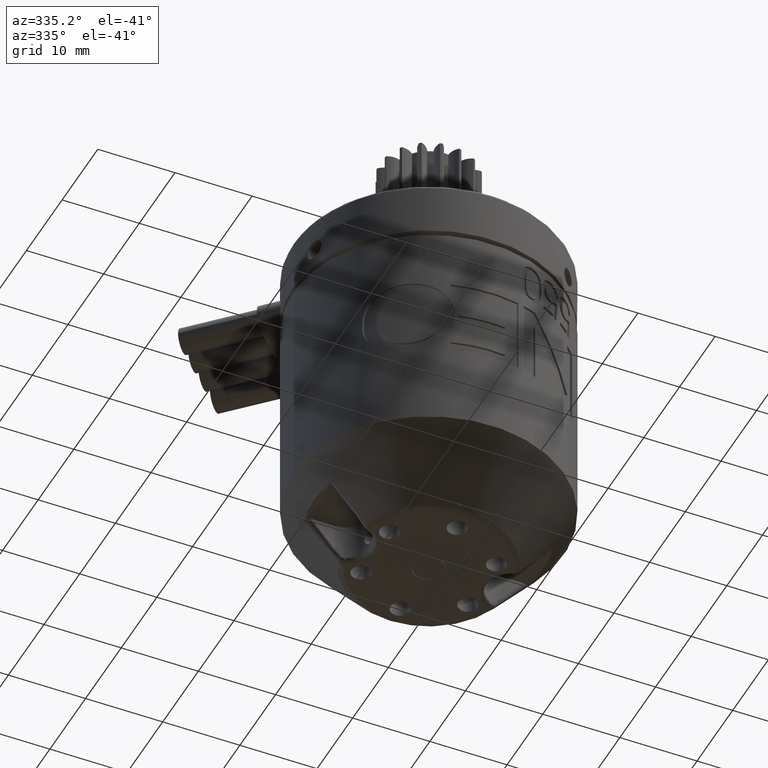
[diagram: clean part render]
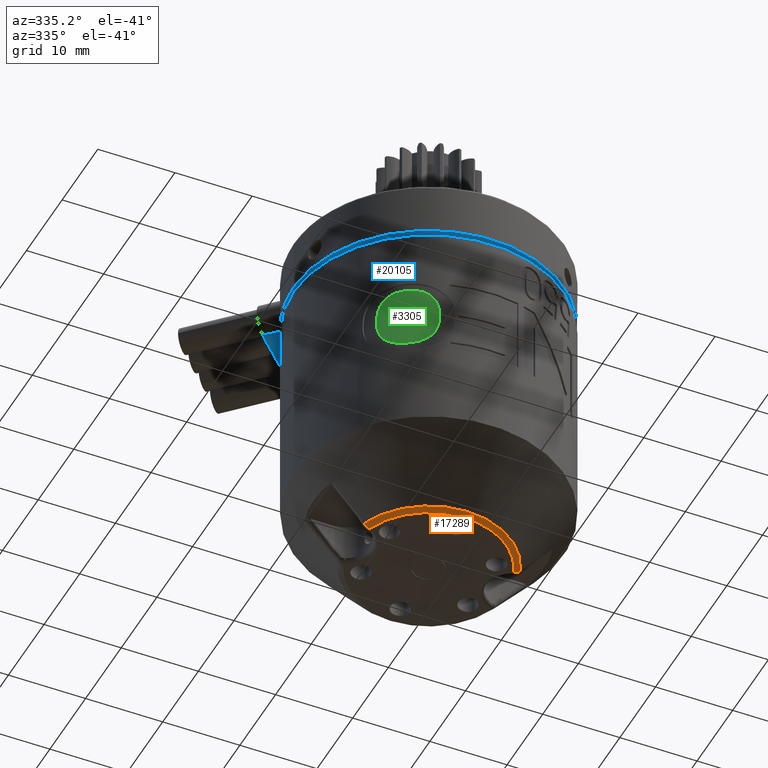
[diagram: same view with three faces highlighted in distinct colors, each labeled with its STEP entity id]
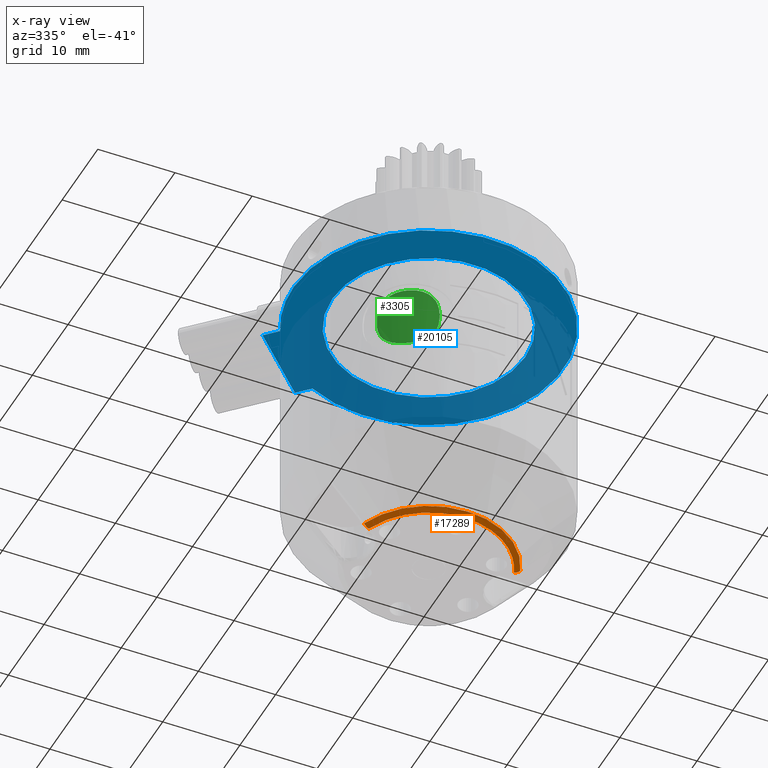
[diagram: x-ray of the same camera — body ghosted, the three highlighted faces saturated]
A machine part, auxiliary view with three faces highlighted in distinct colors.
The next image is the same camera in x-ray (body ghosted, the three faces saturated) — at least one of them is partly hidden behind the body in this view.
Their STEP definitions:

[orange] entity #17289 — the highlighted face is a freeform B-spline surface patch.
#22 = CARTESIAN_POINT ( 'NONE',  ( 11.50366383426905337, -11.59495270973779846, -44.37029868889339213 ) ) ;
#522 = CARTESIAN_POINT ( 'NONE',  ( 7.439127977017144566, -0.4813684167310818274, -44.22007231676117556 ) ) ;
#628 =( BOUNDED_CURVE ( )  B_SPLINE_CURVE ( 3, ( #13154, #19757, #4821, #11505 ),
 .UNSPECIFIED., .F., .F. ) 
 B_SPLINE_CURVE_WITH_KNOTS ( ( 4, 4 ),
 ( 0.0000000000000000000, 1.000000000000000000 ),
 .UNSPECIFIED. ) 
 CURVE ( )  GEOMETRIC_REPRESENTATION_ITEM ( )  RATIONAL_B_SPLINE_CURVE ( ( 1.000000000000000000, 0.5658733974177199144, 0.5658733974177199144, 1.000000000000000000 ) ) 
 REPRESENTATION_ITEM ( '' )  );
#637 = CARTESIAN_POINT ( 'NONE',  ( 7.974050846998459008, -0.2963316515497781967, -44.50000000000000000 ) ) ;
#866 = CARTESIAN_POINT ( 'NONE',  ( 26.96200152701082331, -0.2720763021500833823, -44.50000000000000711 ) ) ;
#984 = CARTESIAN_POINT ( 'NONE',  ( 27.49308213912375720, -0.4589754210635687559, -44.27917320272349855 ) ) ;
#1662 = CARTESIAN_POINT ( 'NONE',  ( 7.760381635693487823, -0.1981302465118955081, -44.49999999999999289 ) ) ;
#2228 = ORIENTED_EDGE ( 'NONE', *, *, #13356, .F. ) ;
#2244 = CARTESIAN_POINT ( 'NONE',  ( 7.698183323178923843, -0.3943180650460911818, -44.40316365045107005 ) ) ;
#2578 = CARTESIAN_POINT ( 'NONE',  ( 27.29819330544807698, -0.3930633364075385994, -44.40497581551484529 ) ) ;
#2711 = EDGE_CURVE ( 'NONE', #19690, #5228, #16773, .T. ) ;
#3272 = CARTESIAN_POINT ( 'NONE',  ( 27.23961836430651218, -0.1981302465118806033, -44.50000000000000000 ) ) ;
#3796 = CARTESIAN_POINT ( 'NONE',  ( 17.49999999999999645, 3.249999999999997780, -44.13570725286108853 ) ) ;
#3875 = CARTESIAN_POINT ( 'NONE',  ( 7.685372907162890677, -0.3987404316812626082, -44.39662385045358661 ) ) ;
#4151 = EDGE_LOOP ( 'NONE', ( #21007, #15312, #2228, #4937 ) ) ;
#4210 = CARTESIAN_POINT ( 'NONE',  ( 27.28446455535385340, -0.3882994163650859143, -44.41168708397476905 ) ) ;
#4821 = CARTESIAN_POINT ( 'NONE',  ( 23.03613023969431239, -10.62474372564457425, -44.50000000000000000 ) ) ;
#4889 = CARTESIAN_POINT ( 'NONE',  ( 23.16915934238507901, -10.78497069137644360, -44.50000000000000000 ) ) ;
#4937 = ORIENTED_EDGE ( 'NONE', *, *, #2711, .T. ) ;
#4998 = CARTESIAN_POINT ( 'NONE',  ( 11.39444630832858607, -11.86533931963580457, -44.13570725286108143 ) ) ;
#5228 = VERTEX_POINT ( 'NONE', #20024 ) ;
#5501 = CARTESIAN_POINT ( 'NONE',  ( 7.652993067762933421, -0.4098307827914228207, -44.37897931449465716 ) ) ;
#5846 = CARTESIAN_POINT ( 'NONE',  ( 27.21461369076353876, -0.3638111369176059151, -44.44172157127045608 ) ) ;
#6569 = B_SPLINE_CURVE_WITH_KNOTS ( 'NONE', 3,
 ( #15779, #866, #7481, #14171, #20776, #5846, #12536, #19163, #4210, #10895, #17512, #2578, #9253, #15889, #984, #7597, #14276 ),
 .UNSPECIFIED., .F., .F.,
 ( 4, 2, 2, 1, 1, 1, 2, 2, 2, 4 ),
 ( 0.0000000000000000000, 0.2500000000000318634, 0.3750000000000477951, 0.4375000000000557332, 0.4687500000000638933, 0.4843750000000724421, 0.4921875000000767164, 0.5000000000000809353, 0.7500000000000405231, 1.000000000000000000 ),
 .UNSPECIFIED. ) ;
#6625 = CARTESIAN_POINT ( 'NONE',  ( 7.501303738556660328, -0.2898519444168197179, -44.37029868889339923 ) ) ;
#7139 = CARTESIAN_POINT ( 'NONE',  ( 7.506699040876324780, -0.4590477529678028690, -44.27897558932735222 ) ) ;
#7247 = CARTESIAN_POINT ( 'NONE',  ( 8.101753518151513234, -0.2478939987034102232, -44.50000000000027711 ) ) ;
#7458 =( BOUNDED_SURFACE ( )  B_SPLINE_SURFACE ( 3, 3, ( 
 ( #19820, #4889, #11575, #18183 ),
 ( #3272, #9922, #16553, #1662 ),
 ( #8289, #14937, #22, #6625 ),
 ( #13320, #19922, #4998, #11683 ) ),
 .UNSPECIFIED., .F., .F., .T. ) 
 B_SPLINE_SURFACE_WITH_KNOTS ( ( 4, 4 ),
 ( 4, 4 ),
 ( 0.0000000000000000000, 1.000000000000000000 ),
 ( 0.0000000000000000000, 1.000000000000000000 ),
 .UNSPECIFIED. ) 
 GEOMETRIC_REPRESENTATION_ITEM ( )  RATIONAL_B_SPLINE_SURFACE ( (
 ( 1.000000000000000000, 0.5558225325761347868, 0.5558225325761347868, 1.000000000000000000),
 ( 0.9362350671472263741, 0.5203805461083589323, 0.5203805461083589323, 0.9362350671472263741),
 ( 0.9362350671472263741, 0.5203805461083589323, 0.5203805461083589323, 0.9362350671472263741),
 ( 1.000000000000000000, 0.5558225325761347868, 0.5558225325761347868, 1.000000000000000000) ) ) 
 REPRESENTATION_ITEM ( '' )  SURFACE ( )  );
#7481 = CARTESIAN_POINT ( 'NONE',  ( 27.02844059091529161, -0.2967436950145157515, -44.49300404410204379 ) ) ;
#7597 = CARTESIAN_POINT ( 'NONE',  ( 27.56077357169575492, -0.4813370377126190425, -44.22019765563894111 ) ) ;
#7700 = CARTESIAN_POINT ( 'NONE',  ( 26.89824648184838196, -0.2478939987033226267, -44.50000000000000000 ) ) ;
#8289 = CARTESIAN_POINT ( 'NONE',  ( 27.49869626144333523, -0.2898519444168033976, -44.37029868889340634 ) ) ;
#8900 = CARTESIAN_POINT ( 'NONE',  ( 7.698097942946535710, -0.3943478934966146987, -44.40312321559697040 ) ) ;
#9253 = CARTESIAN_POINT ( 'NONE',  ( 27.33135880608195478, -0.4045516650603601105, -44.38842823121510150 ) ) ;
#9922 = CARTESIAN_POINT ( 'NONE',  ( 23.34096409284045492, -11.21030264831274259, -44.49999999999999289 ) ) ;
#10457 = DIRECTION ( 'NONE',  ( 4.139648849035764628E-31, -8.326672684688676518E-17, 1.000000000000000000 ) ) ;
#10545 = CARTESIAN_POINT ( 'NONE',  ( 7.692985102591828550, -0.3961150346486706497, -44.40053459245267931 ) ) ;
#10895 = CARTESIAN_POINT ( 'NONE',  ( 27.29078262266515154, -0.3904933310335908514, -44.40862376350272456 ) ) ;
#11505 = CARTESIAN_POINT ( 'NONE',  ( 26.89824648184838196, -0.2478939987033226267, -44.50000000000000000 ) ) ;
#11575 = CARTESIAN_POINT ( 'NONE',  ( 11.83084065761493520, -10.78497069137645781, -44.49999999999999289 ) ) ;
#11683 = CARTESIAN_POINT ( 'NONE',  ( 7.319187052946866778, -0.3543269606399376825, -44.13570725286108853 ) ) ;
#12195 = CARTESIAN_POINT ( 'NONE',  ( 7.663653307169619566, -0.4061916002199402742, -44.38496571207479491 ) ) ;
#12452 = VERTEX_POINT ( 'NONE', #7700 ) ;
#12536 = CARTESIAN_POINT ( 'NONE',  ( 27.24008801811550384, -0.3728033219356151617, -44.43177429566423342 ) ) ;
#13154 = CARTESIAN_POINT ( 'NONE',  ( 8.101753518151513234, -0.2478939987034102232, -44.50000000000027711 ) ) ;
#13320 = CARTESIAN_POINT ( 'NONE',  ( 27.68081294705313056, -0.3543269606399199190, -44.13570725286109564 ) ) ;
#13356 = EDGE_CURVE ( 'NONE', #19690, #19157, #16043, .T. ) ;
#13832 = CARTESIAN_POINT ( 'NONE',  ( 7.592477743488103670, -0.4303417746831906809, -44.34186736203587031 ) ) ;
#14055 = CARTESIAN_POINT ( 'NONE',  ( 7.372860835699917459, -0.5024895001824745133, -44.13570725286110275 ) ) ;
#14171 = CARTESIAN_POINT ( 'NONE',  ( 27.12966103388019334, -0.3335056185317223365, -44.46977657749813062 ) ) ;
#14210 = EDGE_CURVE ( 'NONE', #5228, #12452, #628, .T. ) ;
#14276 = CARTESIAN_POINT ( 'NONE',  ( 27.62713916430007544, -0.5024895001824692953, -44.13570725286110275 ) ) ;
#14937 = CARTESIAN_POINT ( 'NONE',  ( 23.49633616573095907, -11.59495270973777892, -44.37029868889339923 ) ) ;
#15312 = ORIENTED_EDGE ( 'NONE', *, *, #19798, .T. ) ;
#15443 = CARTESIAN_POINT ( 'NONE',  ( 7.372860835699917459, -0.5024895001824745133, -44.13570725286110275 ) ) ;
#15554 = CARTESIAN_POINT ( 'NONE',  ( 7.834936433463836281, -0.3469553813153161137, -44.47152010157733315 ) ) ;
#15779 = CARTESIAN_POINT ( 'NONE',  ( 26.89824648184838196, -0.2478939987033226267, -44.50000000000000000 ) ) ;
#15889 = CARTESIAN_POINT ( 'NONE',  ( 27.37849636320713742, -0.4206261264223687402, -44.36311164772408944 ) ) ;
#16043 = CIRCLE ( 'NONE', #20887, 10.80000579176141784 ) ;
#16341 = FACE_OUTER_BOUND ( 'NONE', #4151, .T. ) ;
#16553 = CARTESIAN_POINT ( 'NONE',  ( 11.65903590715956817, -11.21030264831275858, -44.49999999999998579 ) ) ;
#16773 = B_SPLINE_CURVE_WITH_KNOTS ( 'NONE', 3,
 ( #15443, #522, #7139, #13832, #20436, #5501, #12195, #18810, #3875, #10545, #17171, #2244, #8900, #15554, #637, #7247 ),
 .UNSPECIFIED., .F., .F.,
 ( 4, 2, 2, 2, 1, 1, 2, 2, 4 ),
 ( 0.0000000000000000000, 0.2499999999999793499, 0.3749999999999757416, 0.4374999999999722999, 0.4687499999999790168, 0.4843749999999824030, 0.4921874999999841793, 0.4999999999999859002, 1.000000000000000000 ),
 .UNSPECIFIED. ) ;
#17092 = DIRECTION ( 'NONE',  ( 1.000000000000000000, 2.409336869013683947E-16, 0.0000000000000000000 ) ) ;
#17171 = CARTESIAN_POINT ( 'NONE',  ( 7.696120999959890518, -0.3950312903706837964, -44.40212344632148245 ) ) ;
#17289 = ADVANCED_FACE ( 'NONE', ( #16341 ), #7458, .T. ) ;
#17512 = CARTESIAN_POINT ( 'NONE',  ( 27.29499229233983826, -0.3919539257173494384, -44.40656299581740996 ) ) ;
#18183 = CARTESIAN_POINT ( 'NONE',  ( 8.046860490213626704, -0.09670775064931497189, -44.49999999999999289 ) ) ;
#18810 = CARTESIAN_POINT ( 'NONE',  ( 7.678348599684596820, -0.4011540568754613512, -44.39291050267330974 ) ) ;
#19157 = VERTEX_POINT ( 'NONE', #21396 ) ;
#19163 = CARTESIAN_POINT ( 'NONE',  ( 27.26969910335320080, -0.3831597553009538637, -44.41864051510026457 ) ) ;
#19690 = VERTEX_POINT ( 'NONE', #14055 ) ;
#19757 = CARTESIAN_POINT ( 'NONE',  ( 11.96386976030570182, -10.62474372564458136, -44.50000000000000000 ) ) ;
#19798 = EDGE_CURVE ( 'NONE', #12452, #19157, #6569, .T. ) ;
#19820 = CARTESIAN_POINT ( 'NONE',  ( 26.95313950978637152, -0.09670775064930084430, -44.50000000000000000 ) ) ;
#19922 = CARTESIAN_POINT ( 'NONE',  ( 23.60555369167142814, -11.86533931963578681, -44.13570725286108853 ) ) ;
#20024 = CARTESIAN_POINT ( 'NONE',  ( 8.101753518151513234, -0.2478939987034102232, -44.50000000000027711 ) ) ;
#20436 = CARTESIAN_POINT ( 'NONE',  ( 7.618615616229067022, -0.4215170458916638330, -44.35862362206526655 ) ) ;
#20776 = CARTESIAN_POINT ( 'NONE',  ( 27.16365144977147139, -0.3457159324306005588, -44.45991588946973394 ) ) ;
#20887 = AXIS2_PLACEMENT_3D ( 'NONE', #3796, #10457, #17092 ) ;
#21007 = ORIENTED_EDGE ( 'NONE', *, *, #14210, .T. ) ;
#21396 = CARTESIAN_POINT ( 'NONE',  ( 27.62713916430007544, -0.5024895001824692953, -44.13570725286110275 ) ) ;

[blue] entity #20105 — the highlighted planar face has unit normal (-0, 0, -1).
#194 = AXIS2_PLACEMENT_3D ( 'NONE', #14608, #21219, #6301 ) ;
#894 = CARTESIAN_POINT ( 'NONE',  ( 0.3092524724154048776, 12.66257293453257127, -6.999999999999995559 ) ) ;
#1433 = ORIENTED_EDGE ( 'NONE', *, *, #6004, .T. ) ;
#1487 = EDGE_LOOP ( 'NONE', ( #8454, #1433, #19499, #6812 ) ) ;
#1736 = DIRECTION ( 'NONE',  ( -1.000000000000000000, -2.289834988289385365E-16, -4.732285006208633540E-33 ) ) ;
#2352 = VECTOR ( 'NONE', #5709, 1000.000000000000000 ) ;
#3084 = CARTESIAN_POINT ( 'NONE',  ( 1.863572579003262897, 11.10825282794470859, -6.999999999999995559 ) ) ;
#3451 = EDGE_CURVE ( 'NONE', #11860, #4805, #12776, .T. ) ;
#4805 = VERTEX_POINT ( 'NONE', #18336 ) ;
#5068 = VERTEX_POINT ( 'NONE', #11752 ) ;
#5347 = DIRECTION ( 'NONE',  ( -4.139648849035764628E-31, 8.326672684688676518E-17, -1.000000000000000000 ) ) ;
#5645 = AXIS2_PLACEMENT_3D ( 'NONE', #10012, #16640, #1736 ) ;
#5709 = DIRECTION ( 'NONE',  ( 0.7071067811865474617, 0.7071067811865475727, 2.178940998026311253E-32 ) ) ;
#6004 = EDGE_CURVE ( 'NONE', #15269, #11860, #20945, .T. ) ;
#6015 = CARTESIAN_POINT ( 'NONE',  ( 8.087427065467426957, 20.44074752758459468, -6.999999999999995559 ) ) ;
#6301 = DIRECTION ( 'NONE',  ( -1.000000000000000000, -2.230358754827323618E-16, 0.0000000000000000000 ) ) ;
#6497 = FACE_OUTER_BOUND ( 'NONE', #1487, .T. ) ;
#6812 = ORIENTED_EDGE ( 'NONE', *, *, #12858, .T. ) ;
#8454 = ORIENTED_EDGE ( 'NONE', *, *, #20235, .T. ) ;
#9736 = DIRECTION ( 'NONE',  ( -0.7071067811865464625, 0.7071067811865486830, -4.357881996052586789E-33 ) ) ;
#10012 = CARTESIAN_POINT ( 'NONE',  ( 0.0000000000000000000, 3.249999999999990230, -6.999999999999995559 ) ) ;
#10637 = EDGE_CURVE ( 'NONE', #5068, #5068, #17106, .T. ) ;
#11103 = CARTESIAN_POINT ( 'NONE',  ( 8.087427066504071504, 20.44074752862123745, -6.999999999511317128 ) ) ;
#11174 = AXIS2_PLACEMENT_3D ( 'NONE', #20280, #5347, #12034 ) ;
#11752 = CARTESIAN_POINT ( 'NONE',  ( 5.000000000000004441, 3.249999999999991562, -6.999999999999988454 ) ) ;
#11860 = VERTEX_POINT ( 'NONE', #12751 ) ;
#12034 = DIRECTION ( 'NONE',  ( -1.000000000000000000, -2.428612866367531411E-16, 0.0000000000000000000 ) ) ;
#12713 = DIRECTION ( 'NONE',  ( 0.7071067821297479794, -0.7071067802433471661, 4.357882025117224772E-33 ) ) ;
#12751 = CARTESIAN_POINT ( 'NONE',  ( 9.641747174814955912, 18.88642742238364036, -6.999999999511317128 ) ) ;
#12776 = CIRCLE ( 'NONE', #194, 17.49999999999999645 ) ;
#12858 = EDGE_CURVE ( 'NONE', #4805, #18225, #18007, .T. ) ;
#13199 = PLANE ( 'NONE',  #5645 ) ;
#14030 = LINE ( 'NONE', #20635, #2352 ) ;
#14608 = CARTESIAN_POINT ( 'NONE',  ( 17.49999999999999645, 3.249999999999994671, -6.999999999999995559 ) ) ;
#15269 = VERTEX_POINT ( 'NONE', #11103 ) ;
#16640 = DIRECTION ( 'NONE',  ( -1.433442144322500688E-32, 8.326672684688676518E-17, -1.000000000000000000 ) ) ;
#17106 = CIRCLE ( 'NONE', #11174, 12.49999999999999289 ) ;
#17578 = EDGE_LOOP ( 'NONE', ( #19791 ) ) ;
#18007 = LINE ( 'NONE', #3084, #19513 ) ;
#18225 = VERTEX_POINT ( 'NONE', #894 ) ;
#18336 = CARTESIAN_POINT ( 'NONE',  ( 1.863572579003259344, 11.10825282794471214, -6.999999999999995559 ) ) ;
#19499 = ORIENTED_EDGE ( 'NONE', *, *, #3451, .T. ) ;
#19513 = VECTOR ( 'NONE', #9736, 999.9999999999998863 ) ;
#19791 = ORIENTED_EDGE ( 'NONE', *, *, #10637, .F. ) ;
#20105 = ADVANCED_FACE ( 'NONE', ( #21431, #6497 ), #13199, .T. ) ;
#20235 = EDGE_CURVE ( 'NONE', #18225, #15269, #14030, .T. ) ;
#20280 = CARTESIAN_POINT ( 'NONE',  ( 17.49999999999999645, 3.249999999999994671, -6.999999999999988454 ) ) ;
#20296 = VECTOR ( 'NONE', #12713, 1000.000000000000114 ) ;
#20635 = CARTESIAN_POINT ( 'NONE',  ( 0.3092524724154048776, 12.66257293453257127, -6.999999999999995559 ) ) ;
#20945 = LINE ( 'NONE', #6015, #20296 ) ;
#21219 = DIRECTION ( 'NONE',  ( -4.139648849035764628E-31, 8.326672684688676518E-17, -1.000000000000000000 ) ) ;
#21431 = FACE_BOUND ( 'NONE', #17578, .T. ) ;

[green] entity #3305 — the highlighted cylindrical surface (partial cylindrical patch) has radius 17.5 mm, axis along (-0, 0, -1).
#70 = CARTESIAN_POINT ( 'NONE',  ( 5.533648454040138276, -9.520007752569677351, -23.04068165805056978 ) ) ;
#700 = CARTESIAN_POINT ( 'NONE',  ( 11.30750749180823966, -13.11774797808820558, -20.98083291403303363 ) ) ;
#815 = CARTESIAN_POINT ( 'NONE',  ( 8.822647812327637951, -11.94914742998792256, -24.31406775299358358 ) ) ;
#977 = VERTEX_POINT ( 'NONE', #11449 ) ;
#1029 = CARTESIAN_POINT ( 'NONE',  ( 10.54985635765608620, -12.81167819823166276, -17.39643327027750175 ) ) ;
#1297 = CARTESIAN_POINT ( 'NONE',  ( 6.070400491761001938, -10.00368207324945757, -16.84240964047531364 ) ) ;
#1365 = B_SPLINE_CURVE_WITH_KNOTS ( 'NONE', 3,
 ( #5886, #12580, #19214, #4257, #10938, #17551, #2623, #9294, #15930, #1029, #7640, #14317, #20927, #5996, #12691, #19309, #4359, #11060 ),
 .UNSPECIFIED., .F., .F.,
 ( 4, 2, 2, 2, 2, 2, 2, 2, 4 ),
 ( 0.0000000000000000000, 0.0007589268900731786175, 0.001517853780146357235, 0.002276780670219536069, 0.003035707560292714470, 0.003794634450365892871, 0.004553561340439072139, 0.005312488230512250539, 0.006071415120585428940 ),
 .UNSPECIFIED. ) ;
#1701 = CARTESIAN_POINT ( 'NONE',  ( 6.064642647946742571, -9.998750228470218104, -23.74930663019873478 ) ) ;
#2265 = EDGE_CURVE ( 'NONE', #977, #4662, #1365, .T. ) ;
#2416 = CARTESIAN_POINT ( 'NONE',  ( 9.650323487306737391, -12.39217149925121753, -24.00095499285716727 ) ) ;
#2623 = CARTESIAN_POINT ( 'NONE',  ( 9.657766510941343086, -12.39592841730424766, -16.62270847107738803 ) ) ;
#2880 = CARTESIAN_POINT ( 'NONE',  ( 5.545574894488098039, -9.531159563480612107, -17.53660513488476980 ) ) ;
#3305 = ADVANCED_FACE ( 'NONE', ( #9372 ), #16009, .T. ) ;
#3318 = CARTESIAN_POINT ( 'NONE',  ( 6.954898642737441072, -10.71809668666475091, -24.26117965974541590 ) ) ;
#3425 = CARTESIAN_POINT ( 'NONE',  ( 5.079339528485517619, -9.077946631265426447, -21.14752040184337645 ) ) ;
#3514 = EDGE_LOOP ( 'NONE', ( #18657, #14185, #5481, #11959, #20470, #10466 ) ) ;
#4049 = CARTESIAN_POINT ( 'NONE',  ( 10.53416953835020031, -12.80487098690146119, -23.25454950367037199 ) ) ;
#4095 = EDGE_CURVE ( 'NONE', #7201, #17581, #16240, .T. ) ;
#4204 = VECTOR ( 'NONE', #17927, 1000.000000000000000 ) ;
#4216 = EDGE_CURVE ( 'NONE', #15127, #7201, #19107, .T. ) ;
#4257 = CARTESIAN_POINT ( 'NONE',  ( 8.819782510786781771, -11.94755414633247170, -16.29898545508072516 ) ) ;
#4359 = CARTESIAN_POINT ( 'NONE',  ( 11.31127905561682034, -13.11917200634141700, -19.72960257223142833 ) ) ;
#4508 = CARTESIAN_POINT ( 'NONE',  ( 5.175253204438500454, -9.174037139575819566, -18.65702584690852817 ) ) ;
#4549 = DIRECTION ( 'NONE',  ( -1.000000000000000000, -2.230358754827323618E-16, 0.0000000000000000000 ) ) ;
#4622 = CARTESIAN_POINT ( 'NONE',  ( 7.963059622011372518, -11.42299452145641858, -16.21379743628122583 ) ) ;
#4632 = LINE ( 'NONE', #11319, #4204 ) ;
#4662 = VERTEX_POINT ( 'NONE', #6247 ) ;
#4942 = CARTESIAN_POINT ( 'NONE',  ( 7.767553597406847032, -11.29625859723643622, -24.38840550624826164 ) ) ;
#5049 = CARTESIAN_POINT ( 'NONE',  ( 5.246574223135843873, -9.244199680465882807, -22.25383750126366067 ) ) ;
#5481 = ORIENTED_EDGE ( 'NONE', *, *, #4095, .F. ) ;
#5663 = LINE ( 'NONE', #12351, #16933 ) ;
#5675 = CARTESIAN_POINT ( 'NONE',  ( 11.01663515988456865, -13.00492814815984666, -22.41748298179601306 ) ) ;
#5767 = AXIS2_PLACEMENT_3D ( 'NONE', #12887, #19497, #4549 ) ;
#5886 = CARTESIAN_POINT ( 'NONE',  ( 7.963059622011372518, -11.42299452145641858, -16.21379743628122583 ) ) ;
#5996 = CARTESIAN_POINT ( 'NONE',  ( 11.18329292746932779, -13.07040364556709910, -18.72996187770925403 ) ) ;
#6154 = CARTESIAN_POINT ( 'NONE',  ( 5.077310167286190890, -9.075863013236569188, -19.63585187302517454 ) ) ;
#6247 = CARTESIAN_POINT ( 'NONE',  ( 11.31847117338682374, -13.12188753216165793, -19.98206042329421095 ) ) ;
#6258 = CARTESIAN_POINT ( 'NONE',  ( 7.146481536628670028, -10.86083473628818830, -16.29047381407216122 ) ) ;
#6677 = CARTESIAN_POINT ( 'NONE',  ( 5.393321546145861234, -9.386554263149843536, -22.71579933592961709 ) ) ;
#6882 = CARTESIAN_POINT ( 'NONE',  ( 5.069545015137943089, -9.068026987684273621, -19.88465782589161535 ) ) ;
#7201 = VERTEX_POINT ( 'NONE', #17285 ) ;
#7312 = CARTESIAN_POINT ( 'NONE',  ( 11.29597496046107707, -13.11342001927816980, -21.23031388029447797 ) ) ;
#7417 = CARTESIAN_POINT ( 'NONE',  ( 8.398821387951187489, -11.69921641622048014, -24.37672458911795559 ) ) ;
#7640 = CARTESIAN_POINT ( 'NONE',  ( 10.69318078729901345, -12.87248826641289412, -17.59245303425893781 ) ) ;
#7906 = CARTESIAN_POINT ( 'NONE',  ( 6.398052156917230171, -10.27932324645179740, -16.59314429319093520 ) ) ;
#8092 = EDGE_CURVE ( 'NONE', #4662, #15127, #5663, .T. ) ;
#8332 = CARTESIAN_POINT ( 'NONE',  ( 5.913194248241919304, -9.865954700392641996, -23.59507800274260347 ) ) ;
#9082 = CARTESIAN_POINT ( 'NONE',  ( 9.446173108322103218, -12.28835332666717939, -24.10285390357802981 ) ) ;
#9294 = CARTESIAN_POINT ( 'NONE',  ( 10.04231210056073209, -12.58283276393958872, -16.88325156861444043 ) ) ;
#9372 = FACE_OUTER_BOUND ( 'NONE', #3514, .T. ) ;
#9543 = CARTESIAN_POINT ( 'NONE',  ( 5.657358872002064665, -9.635403329648260851, -17.34134564157987768 ) ) ;
#9972 = CARTESIAN_POINT ( 'NONE',  ( 6.578137664974785359, -10.42551866722842036, -24.10708190140133311 ) ) ;
#10072 = CARTESIAN_POINT ( 'NONE',  ( 5.074360126625390599, -9.072886047227791906, -20.89454753234186057 ) ) ;
#10466 = ORIENTED_EDGE ( 'NONE', *, *, #2265, .F. ) ;
#10724 = CARTESIAN_POINT ( 'NONE',  ( 10.20908124957941787, -12.65987681288777722, -23.60128543720080074 ) ) ;
#10938 = CARTESIAN_POINT ( 'NONE',  ( 9.031702306949249248, -12.06646976661389026, -16.35600422299443579 ) ) ;
#11060 = CARTESIAN_POINT ( 'NONE',  ( 11.31847117338682374, -13.12188753216165793, -19.98206042329421095 ) ) ;
#11198 = CARTESIAN_POINT ( 'NONE',  ( 5.286477595432097942, -9.283393510673027649, -18.19022128621512024 ) ) ;
#11319 = CARTESIAN_POINT ( 'NONE',  ( 5.069545015137943089, -9.068026987684273621, -20.26310750121628956 ) ) ;
#11449 = CARTESIAN_POINT ( 'NONE',  ( 7.963059622011372518, -11.42299452145641858, -16.21379743628122583 ) ) ;
#11621 = CARTESIAN_POINT ( 'NONE',  ( 7.556865691490053827, -11.15299418185900748, -24.38066458938819991 ) ) ;
#11739 = CARTESIAN_POINT ( 'NONE',  ( 5.164660723422982436, -9.163512018346255061, -21.89600050490356864 ) ) ;
#11959 = ORIENTED_EDGE ( 'NONE', *, *, #4216, .F. ) ;
#12351 = CARTESIAN_POINT ( 'NONE',  ( 11.31847117338682196, -13.12188753216165793, -20.35746626745006438 ) ) ;
#12364 = CARTESIAN_POINT ( 'NONE',  ( 10.91726865692356263, -12.96525896760127772, -22.64472513663741537 ) ) ;
#12509 = CARTESIAN_POINT ( 'NONE',  ( 5.069545015137943089, -9.068026987684273621, -20.64155717654096378 ) ) ;
#12580 = CARTESIAN_POINT ( 'NONE',  ( 8.175118590278492192, -11.56082553706975524, -16.22156814430477567 ) ) ;
#12691 = CARTESIAN_POINT ( 'NONE',  ( 11.23839308103440437, -13.09146576062533462, -18.97708226040722934 ) ) ;
#12854 = CARTESIAN_POINT ( 'NONE',  ( 5.085426691510482655, -9.084084026796519495, -19.38563896378117946 ) ) ;
#12887 = CARTESIAN_POINT ( 'NONE',  ( 17.49999999999999645, 3.249999999999997780, -44.50000000000000000 ) ) ;
#12957 = CARTESIAN_POINT ( 'NONE',  ( 7.548830307465658862, -11.14740335187545028, -16.23139591261128700 ) ) ;
#13363 = CARTESIAN_POINT ( 'NONE',  ( 5.351321451025243370, -9.346118874060726611, -22.60200582905082101 ) ) ;
#13618 = EDGE_CURVE ( 'NONE', #17581, #15376, #4632, .T. ) ;
#13999 = CARTESIAN_POINT ( 'NONE',  ( 11.22503324898544363, -13.08634701186899818, -21.71717136008935967 ) ) ;
#14105 = CARTESIAN_POINT ( 'NONE',  ( 8.188067243759235225, -11.56888488484246302, -24.38613616577887910 ) ) ;
#14185 = ORIENTED_EDGE ( 'NONE', *, *, #13618, .F. ) ;
#14317 = CARTESIAN_POINT ( 'NONE',  ( 10.93710237126795981, -12.97331009411458425, -18.02029409136973470 ) ) ;
#14575 = CARTESIAN_POINT ( 'NONE',  ( 6.577508902500302845, -10.42496882444709883, -16.49355021550463007 ) ) ;
#14980 = CARTESIAN_POINT ( 'NONE',  ( 5.646125110618332776, -9.625091663309156331, -23.23851097925842168 ) ) ;
#15127 = VERTEX_POINT ( 'NONE', #20751 ) ;
#15376 = VERTEX_POINT ( 'NONE', #6882 ) ;
#15619 = CARTESIAN_POINT ( 'NONE',  ( 11.31847117338682374, -13.12188753216165793, -20.73287211160590715 ) ) ;
#15723 = CARTESIAN_POINT ( 'NONE',  ( 9.034351640290045893, -12.06787679657997359, -24.25895328622091185 ) ) ;
#15930 = CARTESIAN_POINT ( 'NONE',  ( 10.22296096718803149, -12.66624032577087178, -17.03936932505540369 ) ) ;
#16009 = CYLINDRICAL_SURFACE ( 'NONE', #5767, 17.49999999999999645 ) ;
#16179 = CARTESIAN_POINT ( 'NONE',  ( 5.922260868121410837, -9.873937078804740253, -16.99116690234272653 ) ) ;
#16180 = B_SPLINE_CURVE_WITH_KNOTS ( 'NONE', 3,
 ( #21068, #6154, #12854, #19461, #4508, #11198, #17808, #2880, #9543, #16179, #1297, #7906, #14575, #21180, #6258, #12957, #19566, #4622 ),
 .UNSPECIFIED., .F., .F.,
 ( 4, 2, 2, 2, 2, 2, 2, 2, 4 ),
 ( 0.0000000000000000000, 0.0007470610151516613199, 0.001494122030303322640, 0.002241183045454983851, 0.002988244060606645280, 0.003735305075758306708, 0.004482366090909967703, 0.005229427106061629131, 0.005976488121213290559 ),
 .UNSPECIFIED. ) ;
#16240 = B_SPLINE_CURVE_WITH_KNOTS ( 'NONE', 3,
 ( #19868, #4942, #11621, #18227, #3318, #9972, #16600, #1701, #8332, #14980, #70, #6677, #13363, #19969, #5049, #11739, #18334, #3425, #10072, #16702 ),
 .UNSPECIFIED., .F., .F.,
 ( 4, 2, 2, 2, 2, 2, 2, 2, 2, 4 ),
 ( 0.0000000000000000000, 0.0007599878651520708059, 0.001519975730304141612, 0.002279963595456212418, 0.003039951460608283224, 0.003799939325760354029, 0.004179933258336394203, 0.004559927190912433509, 0.005319915056064506050, 0.006079902921216578590 ),
 .UNSPECIFIED. ) ;
#16600 = CARTESIAN_POINT ( 'NONE',  ( 6.395576189909030873, -10.27732613014977403, -24.00438713347961439 ) ) ;
#16702 = CARTESIAN_POINT ( 'NONE',  ( 5.069545015137943089, -9.068026987684273621, -20.64155717654096378 ) ) ;
#16933 = VECTOR ( 'NONE', #18980, 1000.000000000000000 ) ;
#17285 = CARTESIAN_POINT ( 'NONE',  ( 7.980080169941410340, -11.43404325890036866, -24.39561561809940926 ) ) ;
#17354 = CARTESIAN_POINT ( 'NONE',  ( 10.03158698780998392, -12.57775276674696130, -23.74989595419879507 ) ) ;
#17551 = CARTESIAN_POINT ( 'NONE',  ( 9.450124616950088097, -12.29045746582426446, -16.51631174999715057 ) ) ;
#17581 = VERTEX_POINT ( 'NONE', #12509 ) ;
#17808 = CARTESIAN_POINT ( 'NONE',  ( 5.360257732372098793, -9.355275763187954396, -17.96009343805435776 ) ) ;
#17927 = DIRECTION ( 'NONE',  ( 4.002082424436676103E-31, -8.326672684688676518E-17, 1.000000000000000000 ) ) ;
#18227 = CARTESIAN_POINT ( 'NONE',  ( 7.150587084430434892, -10.86388725981520409, -24.31535557919386648 ) ) ;
#18334 = CARTESIAN_POINT ( 'NONE',  ( 5.125614064636524247, -9.124394830239157983, -21.64999479142323224 ) ) ;
#18657 = ORIENTED_EDGE ( 'NONE', *, *, #20291, .F. ) ;
#18980 = DIRECTION ( 'NONE',  ( -4.002082424436676103E-31, 8.326672684688676518E-17, -1.000000000000000000 ) ) ;
#18994 = CARTESIAN_POINT ( 'NONE',  ( 10.67656307320283737, -12.86544860770296417, -23.06173355563072747 ) ) ;
#19107 = B_SPLINE_CURVE_WITH_KNOTS ( 'NONE', 3,
 ( #15619, #700, #7312, #13999, #20604, #5675, #12364, #18994, #4049, #10724, #17354, #2416, #9082, #15723, #815, #7417, #14105, #20713 ),
 .UNSPECIFIED., .F., .F.,
 ( 4, 2, 2, 2, 2, 2, 2, 2, 4 ),
 ( 0.0000000000000000000, 0.0007446066509015898758, 0.001489213301803179752, 0.002233819952704769844, 0.002978426603606359503, 0.003723033254507949162, 0.004467639905409539688, 0.005212246556311129347, 0.005956853207212719006 ),
 .UNSPECIFIED. ) ;
#19214 = CARTESIAN_POINT ( 'NONE',  ( 8.391499710177320992, -11.69480010441928464, -16.22991937615194047 ) ) ;
#19309 = CARTESIAN_POINT ( 'NONE',  ( 11.30379309721513614, -13.11637542130844558, -19.47717154215649060 ) ) ;
#19461 = CARTESIAN_POINT ( 'NONE',  ( 5.135549103057132747, -9.134329341107902067, -18.89623398363954010 ) ) ;
#19497 = DIRECTION ( 'NONE',  ( -4.139648849035764628E-31, 8.326672684688676518E-17, -1.000000000000000000 ) ) ;
#19566 = CARTESIAN_POINT ( 'NONE',  ( 7.754431000052810496, -11.28739311263348455, -16.22261940315677009 ) ) ;
#19868 = CARTESIAN_POINT ( 'NONE',  ( 7.980080169941410340, -11.43404325890036866, -24.39561561809940926 ) ) ;
#19969 = CARTESIAN_POINT ( 'NONE',  ( 5.278108586267149960, -9.275093670177145810, -22.37131128055937523 ) ) ;
#20291 = EDGE_CURVE ( 'NONE', #15376, #977, #16180, .T. ) ;
#20470 = ORIENTED_EDGE ( 'NONE', *, *, #8092, .F. ) ;
#20604 = CARTESIAN_POINT ( 'NONE',  ( 11.16907494874110363, -13.06490412926863875, -21.95460762987380932 ) ) ;
#20713 = CARTESIAN_POINT ( 'NONE',  ( 7.980080169941410340, -11.43404325890036866, -24.39561561809940926 ) ) ;
#20751 = CARTESIAN_POINT ( 'NONE',  ( 11.31847117338682374, -13.12188753216165793, -20.73287211160590715 ) ) ;
#20927 = CARTESIAN_POINT ( 'NONE',  ( 11.03477073621370153, -13.01213927996806419, -18.25353098855154954 ) ) ;
#21068 = CARTESIAN_POINT ( 'NONE',  ( 5.069545015137943089, -9.068026987684273621, -19.88465782589161535 ) ) ;
#21180 = CARTESIAN_POINT ( 'NONE',  ( 6.949868990332463525, -10.71425149456323744, -16.34268884841850067 ) ) ;